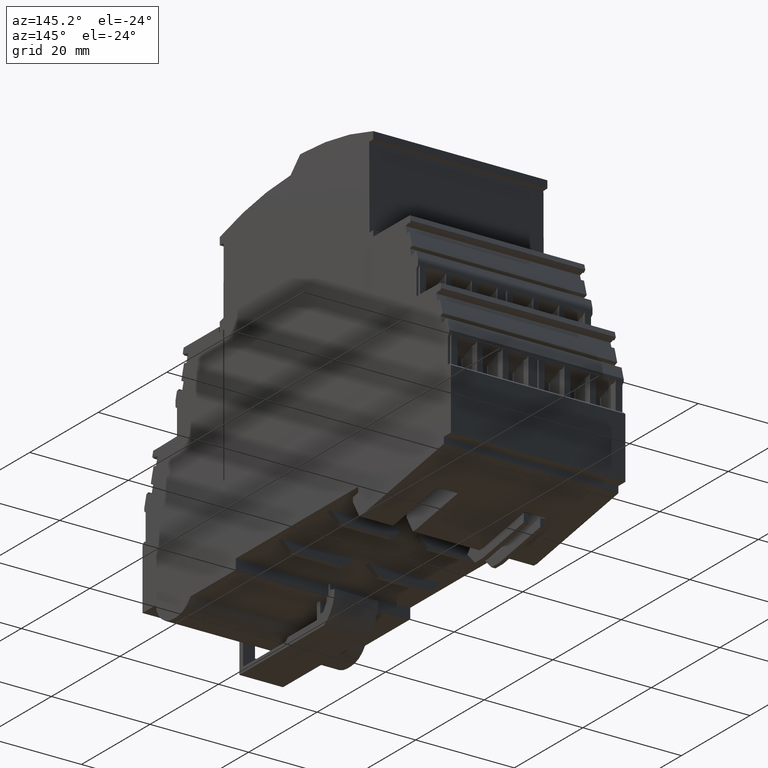
[diagram: clean part render]
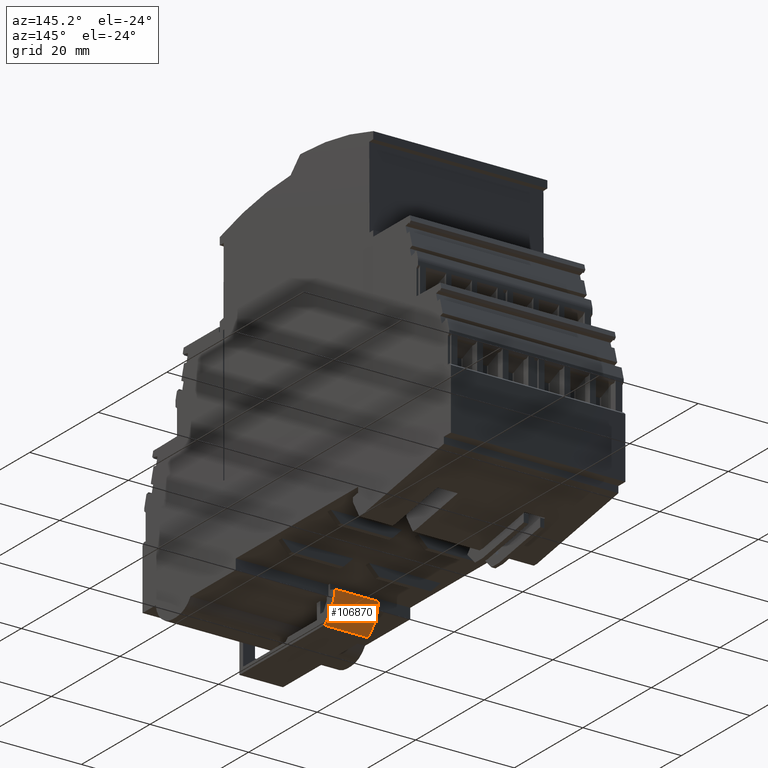
[diagram: same view with one face highlighted and labeled with its STEP entity id]
A machine part, auxiliary view. The second image highlights one B-rep face of the part: STEP entity #106870.
In plain terms, the highlighted cylindrical surface (partial cylindrical patch) has radius 6.5 mm, axis along (1, -0, 0).
Its self-contained STEP definition (entity closure, byte-faithful):
#1360=CARTESIAN_POINT('',(115.986757626549,156.291026265834,
68.5021431980012));
#1370=VERTEX_POINT('',#1360);
#1400=CARTESIAN_POINT('',(109.486803256103,156.266670935475,
68.5021431980012));
#1410=DIRECTION('',(-1.06338201652093E-15,-2.53986208454016E-19,1.));
#1420=DIRECTION('',(0.99999390765779,0.00349065141522352,
1.0633764246111E-15));
#1430=AXIS2_PLACEMENT_3D('',#1400,#1410,#1420);
#1440=CIRCLE('',#1430,6.5);
#1450=CARTESIAN_POINT('',(112.970082349532,150.778796414563,
68.5021431980012));
#1460=VERTEX_POINT('',#1450);
#1470=EDGE_CURVE('',#1460,#1370,#1440,.T.);
#103830=CARTESIAN_POINT('',(109.486803256103,156.266670935475,
59.652143198001));
#103840=DIRECTION('',(-1.06338201652093E-15,-2.53986208454016E-19,1.));
#103850=DIRECTION('',(0.999993907657791,0.00349065141522352,
1.0633764246111E-15));
#103860=AXIS2_PLACEMENT_3D('',#103830,#103840,#103850);
#103870=CIRCLE('',#103860,6.5);
#103880=CARTESIAN_POINT('',(112.970082349532,150.778796414563,
59.6521431980011));
#103890=VERTEX_POINT('',#103880);
#103900=CARTESIAN_POINT('',(115.986757626549,156.291026265834,
59.6521431980011));
#103910=VERTEX_POINT('',#103900);
#103920=EDGE_CURVE('',#103890,#103910,#103870,.T.);
#106530=CARTESIAN_POINT('',(115.986757626549,156.291026265834,
51.9021431980011));
#106540=DIRECTION('',(-1.06338201652093E-15,-2.53986208454016E-19,1.));
#106550=VECTOR('',#106540,1.);
#106560=LINE('',#106530,#106550);
#106570=EDGE_CURVE('',#103910,#1370,#106560,.T.);
#106710=CARTESIAN_POINT('',(109.486803256103,156.266670935475,
51.902143198001));
#106720=DIRECTION('',(-1.06338201652093E-15,-2.53986208454016E-19,1.));
#106730=DIRECTION('',(0.999993907657791,0.00349065141522352,
1.0633764246111E-15));
#106740=AXIS2_PLACEMENT_3D('',#106710,#106720,#106730);
#106750=CYLINDRICAL_SURFACE('',#106740,6.5);
#106760=ORIENTED_EDGE('',*,*,#103920,.T.);
#106770=CARTESIAN_POINT('',(112.970082349532,150.778796414563,
51.902143198001));
#106780=DIRECTION('',(-1.06338201652093E-15,-2.53986208454016E-19,1.));
#106790=VECTOR('',#106780,1.);
#106800=LINE('',#106770,#106790);
#106810=EDGE_CURVE('',#103890,#1460,#106800,.T.);
#106820=ORIENTED_EDGE('',*,*,#106810,.F.);
#106830=ORIENTED_EDGE('',*,*,#1470,.F.);
#106840=ORIENTED_EDGE('',*,*,#106570,.T.);
#106850=EDGE_LOOP('',(#106840,#106830,#106820,#106760));
#106860=FACE_OUTER_BOUND('',#106850,.T.);
#106870=ADVANCED_FACE('',(#106860),#106750,.T.);